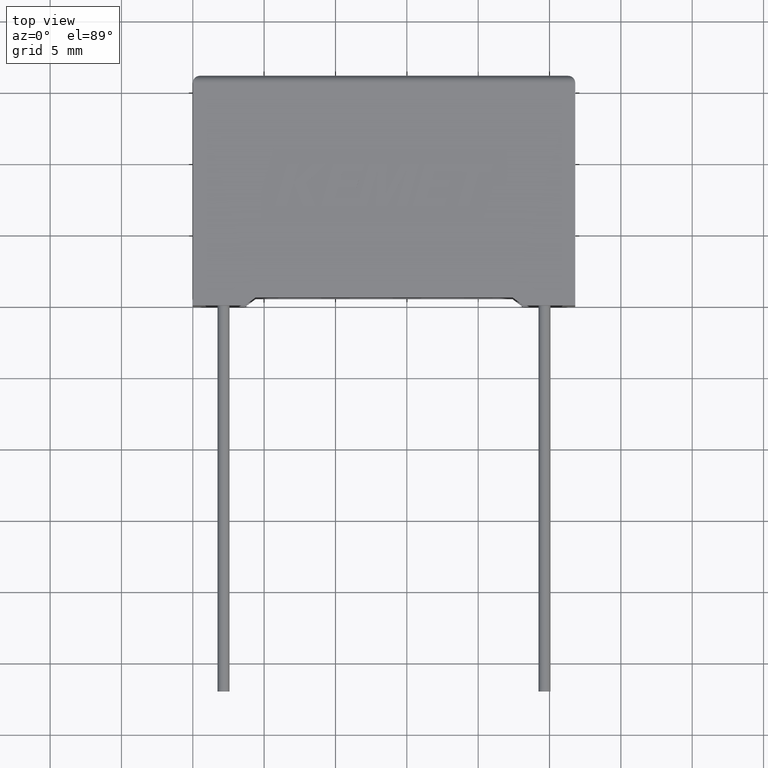
[diagram: clean part render]
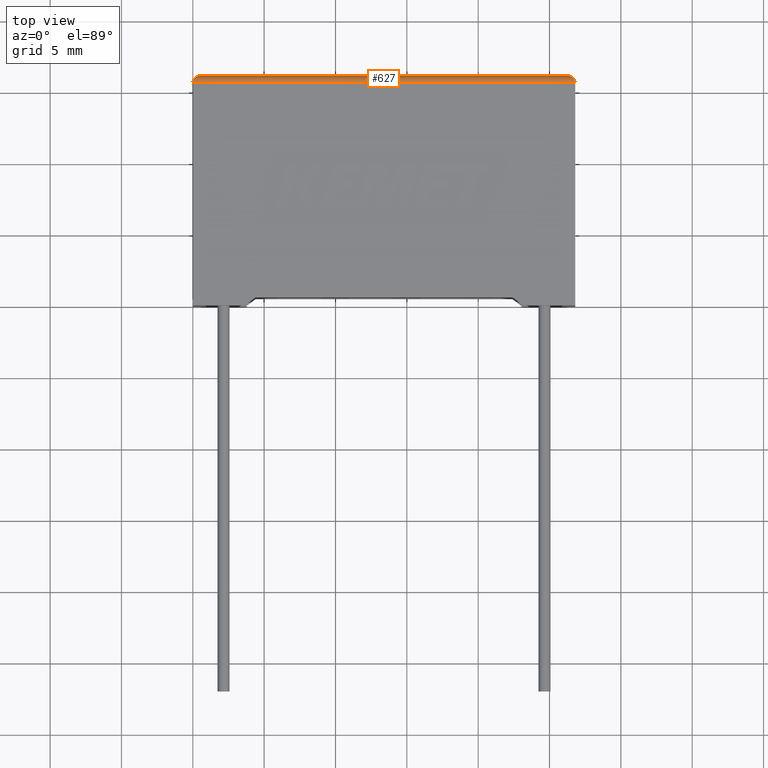
[diagram: same view with one face highlighted and labeled with its STEP entity id]
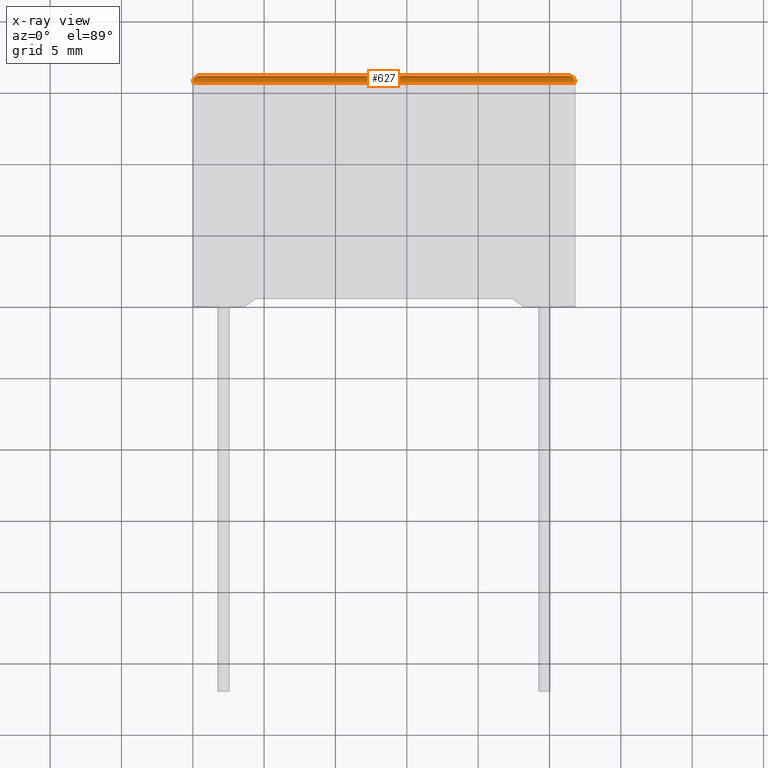
[diagram: x-ray of the same camera — body ghosted, the highlighted face saturated]
A machine part, top view. The second image highlights one B-rep face of the part: STEP entity #627.
The next image is the same camera in x-ray: the body ghosted, the highlighted face saturated — about 0% of this face is hidden behind the body in this view.
In plain terms, the highlighted cylindrical surface (edge-blend (fillet) strip) has radius 0.5 mm, axis along (-1, 0, 0).
Its self-contained STEP definition (entity closure, byte-faithful):
#61 = DIRECTION ( 'NONE',  ( -1.000000000000000000, 0.0000000000000000000, 0.0000000000000000000 ) ) ;
#90 = CARTESIAN_POINT ( 'NONE',  ( 26.59289321881345100, 16.10000000000000100, 6.992893218813451400 ) ) ;
#104 = CARTESIAN_POINT ( 'NONE',  ( 1.084202172485504400E-016, 15.89289321881345200, 7.199999999999999300 ) ) ;
#159 = ORIENTED_EDGE ( 'NONE', *, *, #674, .F. ) ;
#237 = LINE ( 'NONE', #2169, #2508 ) ;
#285 = CARTESIAN_POINT ( 'NONE',  ( 26.30000000000000100, 16.10000000000000100, 6.699999999999999300 ) ) ;
#327 =( BOUNDED_CURVE ( )  B_SPLINE_CURVE ( 3, ( #2910, #104, #1284, #1043 ),
 .UNSPECIFIED., .F., .F. ) 
 B_SPLINE_CURVE_WITH_KNOTS ( ( 4, 4 ),
 ( 0.0000000000000000000, 1.570796326794896600 ),
 .UNSPECIFIED. ) 
 CURVE ( )  GEOMETRIC_REPRESENTATION_ITEM ( )  RATIONAL_B_SPLINE_CURVE ( ( 1.000000000000000000, 0.8047378541243649400, 0.8047378541243649400, 1.000000000000000000 ) ) 
 REPRESENTATION_ITEM ( '' )  );
#568 = VERTEX_POINT ( 'NONE', #2570 ) ;
#624 = CARTESIAN_POINT ( 'NONE',  ( 0.0000000000000000000, 15.60000000000000000, 7.200000000000000200 ) ) ;
#627 = ADVANCED_FACE ( 'NONE', ( #1988 ), #1248, .T. ) ;
#674 = EDGE_CURVE ( 'NONE', #2274, #1960, #327, .T. ) ;
#767 = CARTESIAN_POINT ( 'NONE',  ( 26.80000000000000100, 15.89289321881345200, 7.199999999999999300 ) ) ;
#894 =( BOUNDED_CURVE ( )  B_SPLINE_CURVE ( 3, ( #1514, #767, #90, #285 ),
 .UNSPECIFIED., .F., .F. ) 
 B_SPLINE_CURVE_WITH_KNOTS ( ( 4, 4 ),
 ( 3.141592653589793100, 4.712388980384689700 ),
 .UNSPECIFIED. ) 
 CURVE ( )  GEOMETRIC_REPRESENTATION_ITEM ( )  RATIONAL_B_SPLINE_CURVE ( ( 1.000000000000000000, 0.8047378541243649400, 0.8047378541243649400, 1.000000000000000000 ) ) 
 REPRESENTATION_ITEM ( '' )  );
#896 = EDGE_CURVE ( 'NONE', #1960, #568, #911, .T. ) ;
#911 = LINE ( 'NONE', #2176, #1944 ) ;
#939 = EDGE_CURVE ( 'NONE', #1959, #568, #894, .T. ) ;
#1043 = CARTESIAN_POINT ( 'NONE',  ( 0.5000000000000000000, 16.10000000000000100, 6.699999999999999300 ) ) ;
#1248 = CYLINDRICAL_SURFACE ( 'NONE', #2991, 0.5000000000000004400 ) ;
#1251 = DIRECTION ( 'NONE',  ( 0.0000000000000000000, 0.0000000000000000000, 1.000000000000000000 ) ) ;
#1284 = CARTESIAN_POINT ( 'NONE',  ( 0.2071067811865475700, 16.10000000000000100, 6.992893218813451400 ) ) ;
#1422 = CARTESIAN_POINT ( 'NONE',  ( 0.5000000000000000000, 16.10000000000000100, 6.699999999999999300 ) ) ;
#1487 = CARTESIAN_POINT ( 'NONE',  ( 0.0000000000000000000, 15.60000000000000000, 6.699999999999999300 ) ) ;
#1514 = CARTESIAN_POINT ( 'NONE',  ( 26.80000000000000100, 15.60000000000000000, 7.200000000000000200 ) ) ;
#1556 = ORIENTED_EDGE ( 'NONE', *, *, #2717, .F. ) ;
#1734 = ORIENTED_EDGE ( 'NONE', *, *, #939, .T. ) ;
#1944 = VECTOR ( 'NONE', #2368, 1000.000000000000000 ) ;
#1959 = VERTEX_POINT ( 'NONE', #2618 ) ;
#1960 = VERTEX_POINT ( 'NONE', #1422 ) ;
#1988 = FACE_OUTER_BOUND ( 'NONE', #2415, .T. ) ;
#2169 = CARTESIAN_POINT ( 'NONE',  ( 0.0000000000000000000, 15.60000000000000000, 7.200000000000000200 ) ) ;
#2176 = CARTESIAN_POINT ( 'NONE',  ( 0.0000000000000000000, 16.10000000000000100, 6.699999999999999300 ) ) ;
#2274 = VERTEX_POINT ( 'NONE', #624 ) ;
#2319 = ORIENTED_EDGE ( 'NONE', *, *, #896, .F. ) ;
#2368 = DIRECTION ( 'NONE',  ( 1.000000000000000000, -0.0000000000000000000, -0.0000000000000000000 ) ) ;
#2415 = EDGE_LOOP ( 'NONE', ( #1734, #2319, #159, #1556 ) ) ;
#2508 = VECTOR ( 'NONE', #61, 1000.000000000000000 ) ;
#2570 = CARTESIAN_POINT ( 'NONE',  ( 26.30000000000000100, 16.10000000000000100, 6.699999999999999300 ) ) ;
#2618 = CARTESIAN_POINT ( 'NONE',  ( 26.80000000000000100, 15.60000000000000000, 7.200000000000000200 ) ) ;
#2628 = DIRECTION ( 'NONE',  ( -1.000000000000000000, 0.0000000000000000000, 0.0000000000000000000 ) ) ;
#2717 = EDGE_CURVE ( 'NONE', #1959, #2274, #237, .T. ) ;
#2910 = CARTESIAN_POINT ( 'NONE',  ( 0.0000000000000000000, 15.60000000000000000, 7.200000000000000200 ) ) ;
#2991 = AXIS2_PLACEMENT_3D ( 'NONE', #1487, #2628, #1251 ) ;